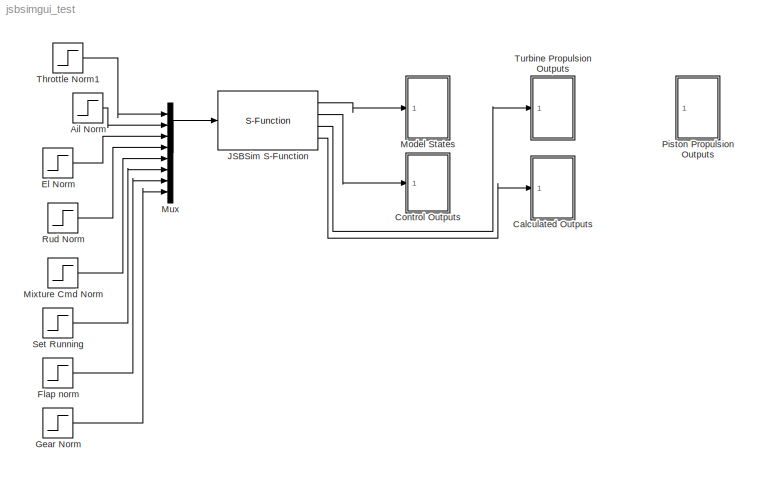
MODEL jsbsimgui_test
KIND model
BLOCK [Step] Ail Norm
  After = init_aileron
  Before = init_aileron
  SampleTime = 0
  Time = 3
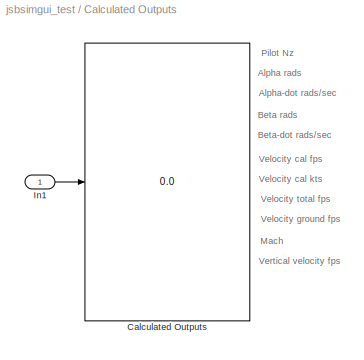
BLOCK [SubSystem] Calculated Outputs
  FunctionWithSeparateData = off
  MaskHideContents = off
  MinAlgLoopOccurrences = off
  Opaque = off
  Ports = [1]
  PropExecContextOutsideSubsystem = off
  RTWSystemCode = Auto
  RequestExecContextInheritance = off
BLOCK [Display] Calculated Outputs/Calculated Outputs
  Decimation = 1
  Format = long
  Lockdown = off
  Ports = [1]
BLOCK [Inport] Calculated Outputs/In1
  IconDisplay = Port number
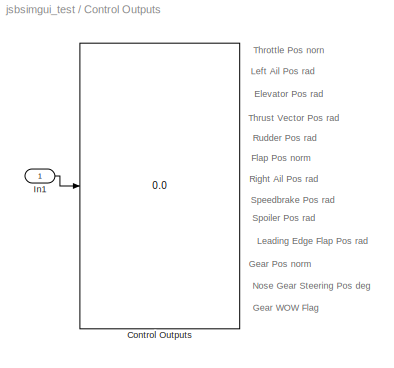
BLOCK [SubSystem] Control Outputs
  FunctionWithSeparateData = off
  MaskHideContents = off
  MinAlgLoopOccurrences = off
  Opaque = off
  Ports = [1]
  PropExecContextOutsideSubsystem = off
  RTWSystemCode = Auto
  RequestExecContextInheritance = off
BLOCK [Display] Control Outputs/Control Outputs
  Decimation = 1
  Format = long
  Lockdown = off
  Ports = [1]
BLOCK [Inport] Control Outputs/In1
  IconDisplay = Port number
BLOCK [Step] El Norm
  After = init_elevator
  Before = init_elevator
  SampleTime = 0
  Time = 15
BLOCK [Step] Flap norm
  After = init_flaps
  Before = init_flaps
  SampleTime = 0
  Time = 0
BLOCK [Step] Gear Norm
  After = init_gear
  Before = init_gear
  SampleTime = 0
  Time = 0
BLOCK [S-Function] JSBSim S-Function
  EnableBusSupport = off
  FunctionName = JSBSim_SFunction
  MaskCallbackString = |||||
  MaskEnableString = on,on,on,on,on,on
  MaskIconFrame = on
  MaskIconOpaque = on
  MaskIconRotate = none
  MaskIconUnits = autoscale
  MaskPromptString = AC:|States:|Controls:|Delta:|Verbosity:|JSBSim Multiplier:
  MaskStyleString = edit,edit,edit,edit,edit,edit
  MaskTabNameString = ,,,,,
  MaskToolTipString = on,on,on,on,on,on
  MaskTunableValueString = on,on,on,on,on,on
  MaskValueString = 't38'|[ 614.9985 0 0 0 0 0 20000 122 34 0 -0.06 0 ]|[ 0.97915 0 0.02 0 0.7 1 0 0 ]|0.00833|'verbose'|1
  MaskVarAliasString = ,,,,,
  MaskVariables = ac_name=@1;IC_states=@2;IC_controls=@3;IC_delta_t=@4;IC_verbosity=@5;IC_sim_multiplier=@6;
  MaskVisibilityString = on,on,on,on,on,on
  Parameters = ac_name, IC_states, IC_controls, IC_delta_t, IC_verbosity,IC_sim_multiplier
  Ports = [1, 4]
BLOCK [Step] Mixture Cmd Norm
  After = init_mixture
  Before = init_mixture
  SampleTime = 0
  Time = .1
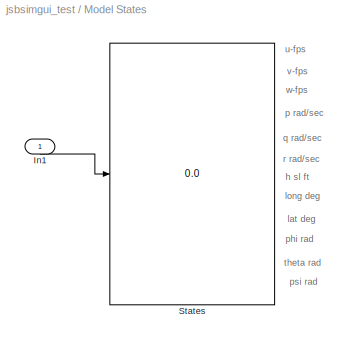
BLOCK [SubSystem] Model States
  FunctionWithSeparateData = off
  MaskHideContents = off
  MinAlgLoopOccurrences = off
  Opaque = off
  Ports = [1]
  PropExecContextOutsideSubsystem = off
  RTWSystemCode = Auto
  RequestExecContextInheritance = off
BLOCK [Inport] Model States/In1
  IconDisplay = Port number
BLOCK [Display] Model States/States
  Decimation = 1
  Format = long
  Lockdown = off
  Ports = [1]
BLOCK [Mux] Mux
  DisplayOption = bar
  Inputs = 8
  Ports = [8, 1]
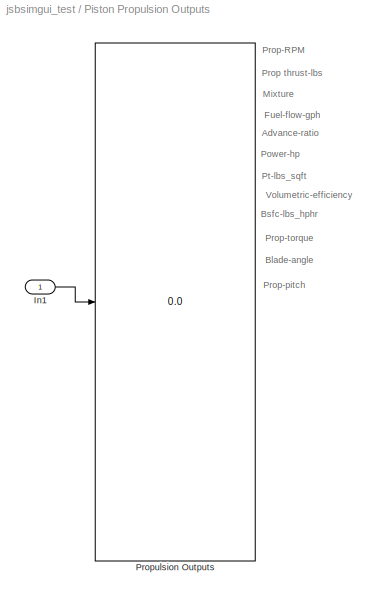
BLOCK [SubSystem] Piston Propulsion Outputs
  FunctionWithSeparateData = off
  MaskHideContents = off
  MinAlgLoopOccurrences = off
  Opaque = off
  Ports = [1]
  PropExecContextOutsideSubsystem = off
  RTWSystemCode = Auto
  RequestExecContextInheritance = off
BLOCK [Inport] Piston Propulsion Outputs/In1
  IconDisplay = Port number
BLOCK [Display] Piston Propulsion Outputs/Propulsion Outputs
  Decimation = 1
  Format = long
  Lockdown = off
  Ports = [1]
BLOCK [Step] Rud Norm
  After = init_rudder
  Before = init_rudder
  SampleTime = 0
  Time = 5
BLOCK [Step] Set Running
  After = init_run_set
  Before = init_run_set
  SampleTime = 0
  Time = 0
BLOCK [Step] Throttle Norm1
  After = init_throttle
  Before = init_throttle
  SampleTime = 0
  Time = 0
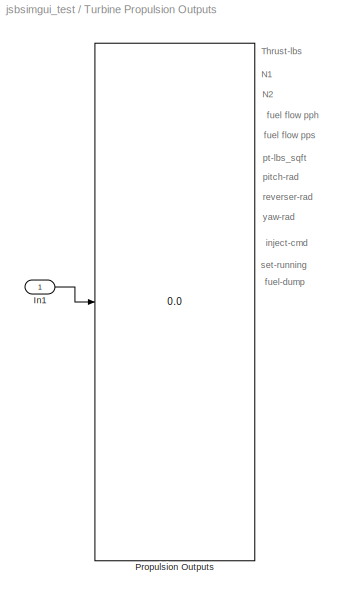
BLOCK [SubSystem] Turbine Propulsion Outputs
  FunctionWithSeparateData = off
  MaskHideContents = off
  MinAlgLoopOccurrences = off
  Opaque = off
  Ports = [1]
  PropExecContextOutsideSubsystem = off
  RTWSystemCode = Auto
  RequestExecContextInheritance = off
BLOCK [Inport] Turbine Propulsion Outputs/In1
  IconDisplay = Port number
BLOCK [Display] Turbine Propulsion Outputs/Propulsion Outputs
  Decimation = 1
  Format = long
  Lockdown = off
  Ports = [1]
ANNOTATION Calculated Outputs: Alpha rads
ANNOTATION Calculated Outputs: Alpha-dot rads/sec
ANNOTATION Calculated Outputs: Beta rads
ANNOTATION Calculated Outputs: Beta-dot rads/sec
ANNOTATION Calculated Outputs: Mach
ANNOTATION Calculated Outputs: Pilot Nz
ANNOTATION Calculated Outputs: Velocity cal fps
ANNOTATION Calculated Outputs: Velocity cal kts
ANNOTATION Calculated Outputs: Velocity ground fps
ANNOTATION Calculated Outputs: Velocity total fps
ANNOTATION Calculated Outputs: Vertical velocity fps
ANNOTATION Control Outputs: Elevator Pos rad
ANNOTATION Control Outputs: Flap Pos norm
ANNOTATION Control Outputs: Gear Pos norm
ANNOTATION Control Outputs: Gear WOW Flag
ANNOTATION Control Outputs: Leading Edge Flap Pos rad
ANNOTATION Control Outputs: Left Ail Pos rad
ANNOTATION Control Outputs: Nose Gear Steering Pos deg
ANNOTATION Control Outputs: Right Ail Pos rad
ANNOTATION Control Outputs: Rudder Pos rad
ANNOTATION Control Outputs: Speedbrake Pos rad
ANNOTATION Control Outputs: Spoiler Pos rad
ANNOTATION Control Outputs: Throttle Pos norn
ANNOTATION Control Outputs: Thrust Vector Pos rad
ANNOTATION Model States: h sl ft
ANNOTATION Model States: lat deg
ANNOTATION Model States: long deg
ANNOTATION Model States: p rad/sec
ANNOTATION Model States: phi rad
ANNOTATION Model States: psi rad
ANNOTATION Model States: q rad/sec
ANNOTATION Model States: r rad/sec
ANNOTATION Model States: theta rad
ANNOTATION Model States: u-fps
ANNOTATION Model States: v-fps
ANNOTATION Model States: w-fps
ANNOTATION Piston Propulsion Outputs: Advance-ratio
ANNOTATION Piston Propulsion Outputs: Blade-angle
ANNOTATION Piston Propulsion Outputs: Bsfc-lbs_hphr
ANNOTATION Piston Propulsion Outputs: Fuel-flow-gph
ANNOTATION Piston Propulsion Outputs: Mixture
ANNOTATION Piston Propulsion Outputs: Power-hp
ANNOTATION Piston Propulsion Outputs: Prop thrust-lbs
ANNOTATION Piston Propulsion Outputs: Prop-RPM
ANNOTATION Piston Propulsion Outputs: Prop-pitch
ANNOTATION Piston Propulsion Outputs: Prop-torque
ANNOTATION Piston Propulsion Outputs: Pt-lbs_sqft
ANNOTATION Piston Propulsion Outputs: Volumetric-efficiency
ANNOTATION Turbine Propulsion Outputs: N1
ANNOTATION Turbine Propulsion Outputs: N2
ANNOTATION Turbine Propulsion Outputs: Thrust-lbs
ANNOTATION Turbine Propulsion Outputs: fuel flow pph
ANNOTATION Turbine Propulsion Outputs: fuel flow pps
ANNOTATION Turbine Propulsion Outputs: fuel-dump
ANNOTATION Turbine Propulsion Outputs: inject-cmd
ANNOTATION Turbine Propulsion Outputs: pitch-rad
ANNOTATION Turbine Propulsion Outputs: pt-lbs_sqft
ANNOTATION Turbine Propulsion Outputs: reverser-rad
ANNOTATION Turbine Propulsion Outputs: set-running
ANNOTATION Turbine Propulsion Outputs: yaw-rad
LINE Ail Norm:1 -> Mux:2
LINE Calculated Outputs/In1:1 -> Calculated Outputs/Calculated Outputs:1
LINE Control Outputs/In1:1 -> Control Outputs/Control Outputs:1
LINE El Norm:1 -> Mux:3
LINE Flap norm:1 -> Mux:7
LINE Gear Norm:1 -> Mux:8
LINE JSBSim S-Function:1 -> Model States:1
LINE JSBSim S-Function:2 -> Control Outputs:1
LINE JSBSim S-Function:3 -> Turbine Propulsion Outputs:1
LINE JSBSim S-Function:4 -> Calculated Outputs:1
LINE Mixture Cmd Norm:1 -> Mux:5
LINE Model States/In1:1 -> Model States/States:1
LINE Mux:1 -> JSBSim S-Function:1
LINE Piston Propulsion Outputs/In1:1 -> Piston Propulsion Outputs/Propulsion Outputs:1
LINE Rud Norm:1 -> Mux:4
LINE Set Running:1 -> Mux:6
LINE Throttle Norm1:1 -> Mux:1
LINE Turbine Propulsion Outputs/In1:1 -> Turbine Propulsion Outputs/Propulsion Outputs:1
